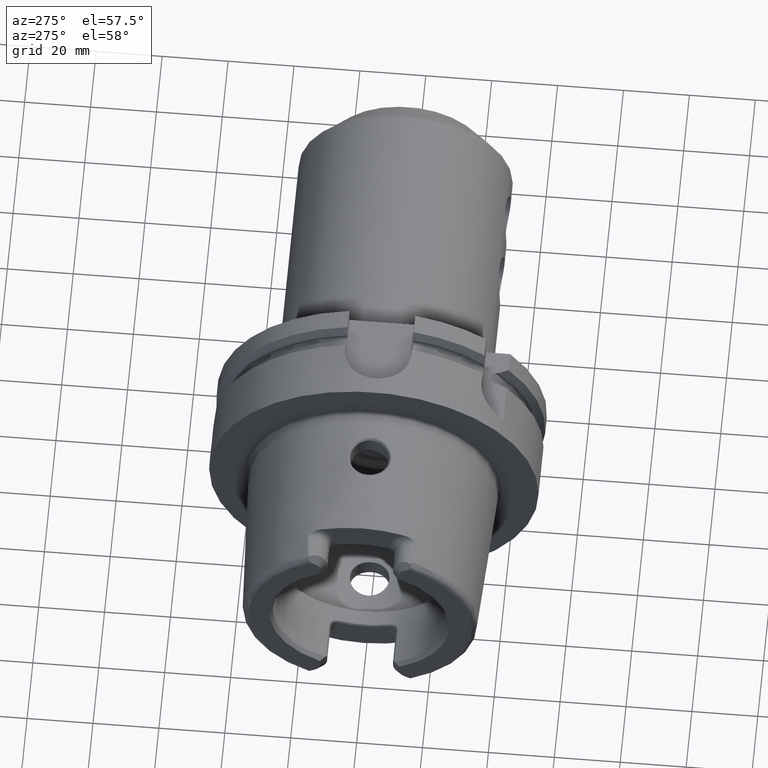
[diagram: clean part render]
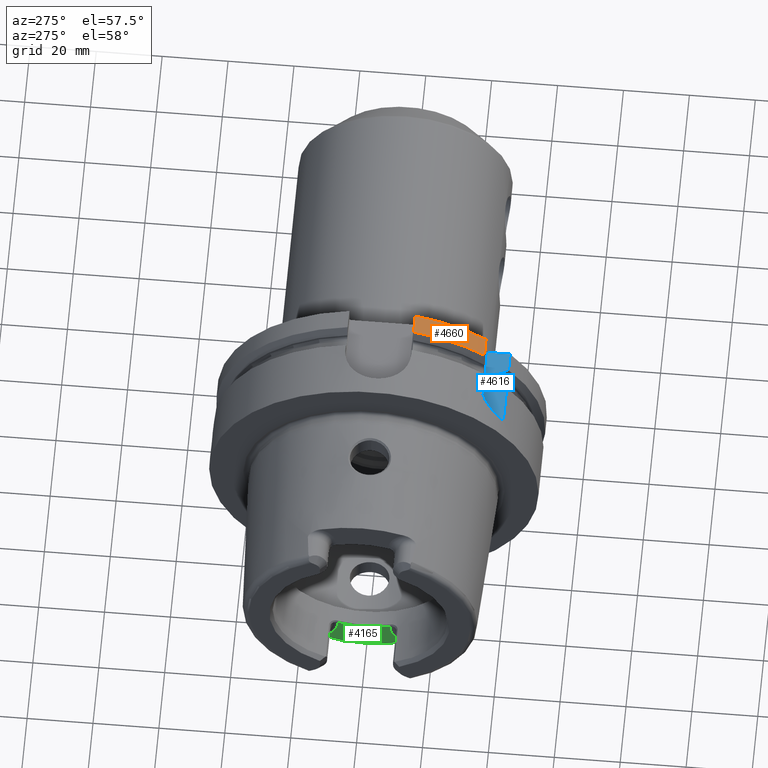
[diagram: same view with three faces highlighted in distinct colors, each labeled with its STEP entity id]
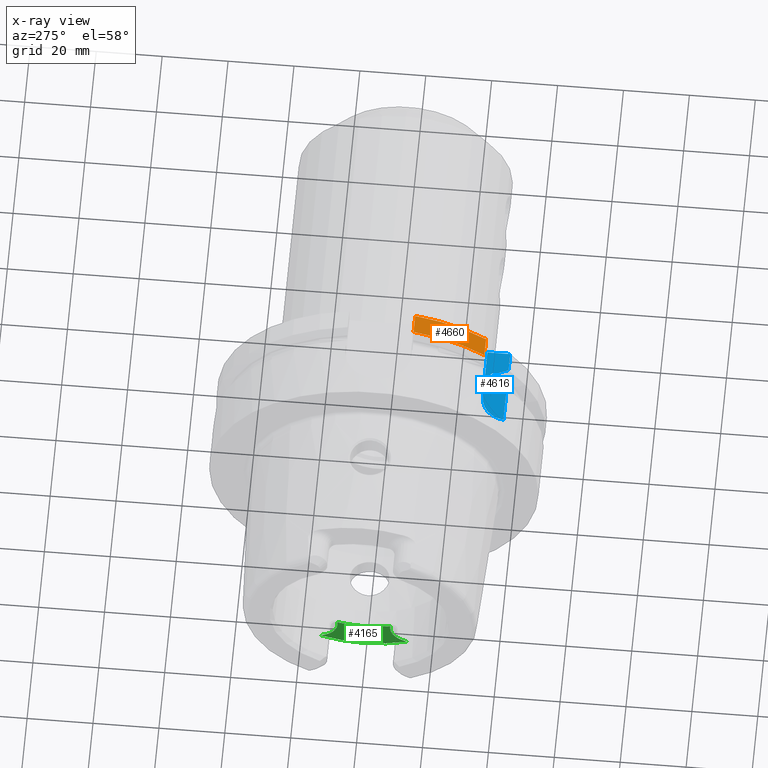
[diagram: x-ray of the same camera — body ghosted, the three highlighted faces saturated]
A machine part, auxiliary view with three faces highlighted in distinct colors.
The next image is the same camera in x-ray (body ghosted, the three faces saturated) — at least one of them is partly hidden behind the body in this view.
Their STEP definitions:

[orange] entity #4660 — the highlighted cylindrical surface (partial cylindrical patch) has radius 50 mm, axis along (1, 0, 0).
#1136=DIRECTION('',(1.E0,0.E0,0.E0));
#1137=VECTOR('',#1136,5.752404735808E0);
#1138=CARTESIAN_POINT('',(2.324759526419E1,-3.15E1,3.882975663071E1));
#1139=LINE('',#1138,#1137);
#1140=DIRECTION('',(1.E0,0.E0,0.E0));
#1141=VECTOR('',#1140,5.752404735808E0);
#1142=CARTESIAN_POINT('',(2.324759526419E1,-1.E1,4.898979485566E1));
#1143=LINE('',#1142,#1141);
#1144=CARTESIAN_POINT('',(2.9E1,0.E0,0.E0));
#1145=DIRECTION('',(1.E0,0.E0,0.E0));
#1146=DIRECTION('',(0.E0,-2.E-1,9.797958971133E-1));
#1147=AXIS2_PLACEMENT_3D('',#1144,#1145,#1146);
#1706=CARTESIAN_POINT('',(2.324759526419E1,-1.E1,4.898979485566E1));
#1713=CARTESIAN_POINT('',(2.324759526419E1,0.E0,0.E0));
#1714=DIRECTION('',(1.E0,0.E0,0.E0));
#1715=DIRECTION('',(0.E0,-2.E-1,9.797958971133E-1));
#1716=AXIS2_PLACEMENT_3D('',#1713,#1714,#1715);
#3304=VERTEX_POINT('',#1706);
#3358=CARTESIAN_POINT('',(2.9E1,-1.E1,4.898979485566E1));
#3359=VERTEX_POINT('',#3358);
#3376=CARTESIAN_POINT('',(2.324759526419E1,-3.15E1,3.882975663071E1));
#3377=CARTESIAN_POINT('',(2.9E1,-3.15E1,3.882975663071E1));
#3378=VERTEX_POINT('',#3376);
#3379=VERTEX_POINT('',#3377);
#4646=CARTESIAN_POINT('',(-5.395E1,0.E0,0.E0));
#4647=DIRECTION('',(1.E0,0.E0,0.E0));
#4648=DIRECTION('',(0.E0,-1.E0,0.E0));
#4649=AXIS2_PLACEMENT_3D('',#4646,#4647,#4648);
#4650=CYLINDRICAL_SURFACE('',#4649,5.E1);
#4652=ORIENTED_EDGE('',*,*,#4651,.F.);
#4654=ORIENTED_EDGE('',*,*,#4653,.F.);
#4656=ORIENTED_EDGE('',*,*,#4655,.T.);
#4657=ORIENTED_EDGE('',*,*,#4554,.T.);
#4658=EDGE_LOOP('',(#4652,#4654,#4656,#4657));
#4659=FACE_OUTER_BOUND('',#4658,.F.);
#4660=ADVANCED_FACE('',(#4659),#4650,.T.);
#1148=CIRCLE('',#1147,5.E1);
#1717=CIRCLE('',#1716,5.E1);
#4554=EDGE_CURVE('',#3359,#3379,#1148,.T.);
#4651=EDGE_CURVE('',#3378,#3379,#1139,.T.);
#4653=EDGE_CURVE('',#3304,#3378,#1717,.T.);
#4655=EDGE_CURVE('',#3304,#3359,#1143,.T.);

[blue] entity #4616 — the highlighted planar face has unit normal (0, 0, 1).
#942=DIRECTION('',(1.E0,2.305590875709E-8,-2.614341417609E-7));
#943=VECTOR('',#942,1.135091581542E1);
#944=CARTESIAN_POINT('',(5.401488920390E0,-3.882975689241E1,3.150000296752E1));
#945=LINE('',#944,#943);
#1045=CARTESIAN_POINT('',(5.401488920390E0,-3.882975689241E1,3.150000296752E1));
#1059=DIRECTION('',(0.E0,1.E0,0.E0));
#1060=VECTOR('',#1059,6.929756630708E0);
#1061=CARTESIAN_POINT('',(2.9E1,-3.882975663071E1,3.15E1));
#1062=LINE('',#1061,#1060);
#1101=DIRECTION('',(1.E0,1.851455699842E-7,-1.851435571355E-7));
#1102=VECTOR('',#1101,1.602812607686E1);
#1103=CARTESIAN_POINT('',(1.297187392314E1,-3.190000296754E1,3.150000296750E1));
#1104=LINE('',#1103,#1102);
#1105=CARTESIAN_POINT('',(1.297187392185E1,-3.95E1,3.15E1));
#1106=DIRECTION('',(0.E0,0.E0,-1.E0));
#1107=DIRECTION('',(-9.961036786085E-1,8.818991701213E-2,0.E0));
#1108=AXIS2_PLACEMENT_3D('',#1105,#1106,#1107);
#1123=DIRECTION('',(1.E0,0.E0,0.E0));
#1124=VECTOR('',#1123,5.752404735808E0);
#1125=CARTESIAN_POINT('',(2.324759526419E1,-3.882975663071E1,3.15E1));
#1126=LINE('',#1125,#1124);
#1312=CARTESIAN_POINT('',(1.8125E1,-3.571640491003E1,3.15E1));
#1313=CARTESIAN_POINT('',(1.798074425159E1,-3.604955434192E1,3.15E1));
#1314=CARTESIAN_POINT('',(1.768677523913E1,-3.672437326077E1,3.15E1));
#1315=CARTESIAN_POINT('',(1.722989798814E1,-3.776083400964E1,3.15E1));
#1316=CARTESIAN_POINT('',(1.691349063877E1,-3.847048452534E1,3.15E1));
#1317=CARTESIAN_POINT('',(1.675240473581E1,-3.882975663071E1,3.15E1));
#1358=DIRECTION('',(0.E0,1.E0,0.E0));
#1359=VECTOR('',#1358,8.344611568473E-1);
#1360=CARTESIAN_POINT('',(1.8125E1,-3.571640491003E1,3.15E1));
#1361=LINE('',#1360,#1359);
#1405=CARTESIAN_POINT('',(1.9125E1,-3.352238058372E1,3.15E1));
#1406=CARTESIAN_POINT('',(1.907497614728E1,-3.352238058372E1,3.15E1));
#1407=CARTESIAN_POINT('',(1.897701784607E1,-3.353249557566E1,3.15E1));
#1408=CARTESIAN_POINT('',(1.883373619528E1,-3.357686808517E1,3.15E1));
#1409=CARTESIAN_POINT('',(1.870193192563E1,-3.364636657565E1,3.15E1));
#1410=CARTESIAN_POINT('',(1.858379344950E1,-3.373566817140E1,3.15E1));
#1411=CARTESIAN_POINT('',(1.847790521215E1,-3.384250269787E1,3.15E1));
#1412=CARTESIAN_POINT('',(1.838099648072E1,-3.396995092392E1,3.15E1));
#1413=CARTESIAN_POINT('',(1.829402378121E1,-3.412035399335E1,3.15E1));
#1414=CARTESIAN_POINT('',(1.822058084936E1,-3.429330627535E1,3.15E1));
#1415=CARTESIAN_POINT('',(1.816533551682E1,-3.448402862690E1,3.15E1));
#1416=CARTESIAN_POINT('',(1.813199463036E1,-3.468480327868E1,3.15E1));
#1417=CARTESIAN_POINT('',(1.8125E1,-3.481613731133E1,3.15E1));
#1418=CARTESIAN_POINT('',(1.8125E1,-3.488194375318E1,3.15E1));
#1484=DIRECTION('',(1.E0,0.E0,0.E0));
#1485=VECTOR('',#1484,1.75E0);
#1486=CARTESIAN_POINT('',(1.9125E1,-3.352238058372E1,3.15E1));
#1487=LINE('',#1486,#1485);
#1546=CARTESIAN_POINT('',(2.1875E1,-3.488194375318E1,3.15E1));
#1547=CARTESIAN_POINT('',(2.1875E1,-3.481623985974E1,3.15E1));
#1548=CARTESIAN_POINT('',(2.186802371144E1,-3.468507935534E1,3.15E1));
#1549=CARTESIAN_POINT('',(2.183478537119E1,-3.448459691562E1,3.15E1));
#1550=CARTESIAN_POINT('',(2.177961035658E1,-3.429381871903E1,3.15E1));
#1551=CARTESIAN_POINT('',(2.170604437623E1,-3.412043323501E1,3.15E1));
#1552=CARTESIAN_POINT('',(2.161869144410E1,-3.396942735539E1,3.15E1));
#1553=CARTESIAN_POINT('',(2.152133244924E1,-3.384158421367E1,3.15E1));
#1554=CARTESIAN_POINT('',(2.141505297065E1,-3.373465665E1,3.15E1));
#1555=CARTESIAN_POINT('',(2.129690043551E1,-3.364560752316E1,3.15E1));
#1556=CARTESIAN_POINT('',(2.116483820292E1,-3.357631746266E1,3.15E1));
#1557=CARTESIAN_POINT('',(2.102273154328E1,-3.353251250912E1,3.15E1));
#1558=CARTESIAN_POINT('',(2.092495432196E1,-3.352238058372E1,3.15E1));
#1559=CARTESIAN_POINT('',(2.0875E1,-3.352238058372E1,3.15E1));
#1630=DIRECTION('',(0.E0,1.E0,0.E0));
#1631=VECTOR('',#1630,8.344611568473E-1);
#1632=CARTESIAN_POINT('',(2.1875E1,-3.571640491003E1,3.15E1));
#1633=LINE('',#1632,#1631);
#1670=CARTESIAN_POINT('',(2.1875E1,-3.571640491003E1,3.15E1));
#1671=CARTESIAN_POINT('',(2.201925574841E1,-3.604955434192E1,3.15E1));
#1672=CARTESIAN_POINT('',(2.231322476087E1,-3.672437326077E1,3.15E1));
#1673=CARTESIAN_POINT('',(2.277010201186E1,-3.776083400964E1,3.15E1));
#1674=CARTESIAN_POINT('',(2.308650936123E1,-3.847048452534E1,3.15E1));
#1675=CARTESIAN_POINT('',(2.324759526419E1,-3.882975663071E1,3.15E1));
#3362=VERTEX_POINT('',#1045);
#3365=CARTESIAN_POINT('',(2.9E1,-3.19E1,3.15E1));
#3367=VERTEX_POINT('',#3365);
#3372=CARTESIAN_POINT('',(2.324759526419E1,-3.882975663071E1,3.15E1));
#3373=CARTESIAN_POINT('',(2.9E1,-3.882975663071E1,3.15E1));
#3374=VERTEX_POINT('',#3372);
#3375=VERTEX_POINT('',#3373);
#3380=CARTESIAN_POINT('',(1.8125E1,-3.571640491003E1,3.15E1));
#3381=CARTESIAN_POINT('',(1.8125E1,-3.488194375318E1,3.15E1));
#3382=VERTEX_POINT('',#3380);
#3383=VERTEX_POINT('',#3381);
#3388=VERTEX_POINT('',#1405);
#3390=CARTESIAN_POINT('',(2.0875E1,-3.352238058372E1,3.15E1));
#3391=VERTEX_POINT('',#3390);
#3394=VERTEX_POINT('',#1546);
#3396=CARTESIAN_POINT('',(2.1875E1,-3.571640491003E1,3.15E1));
#3397=VERTEX_POINT('',#3396);
#3400=VERTEX_POINT('',#1317);
#3401=CARTESIAN_POINT('',(1.297187392314E1,-3.190000296754E1,3.150000296750E1));
#3402=VERTEX_POINT('',#3401);
#4589=CARTESIAN_POINT('',(0.E0,0.E0,3.15E1));
#4590=DIRECTION('',(0.E0,0.E0,1.E0));
#4591=DIRECTION('',(1.E0,0.E0,0.E0));
#4592=AXIS2_PLACEMENT_3D('',#4589,#4590,#4591);
#4593=PLANE('',#4592);
#4594=ORIENTED_EDGE('',*,*,#4536,.T.);
#4595=ORIENTED_EDGE('',*,*,#4549,.F.);
#4597=ORIENTED_EDGE('',*,*,#4596,.F.);
#4599=ORIENTED_EDGE('',*,*,#4598,.F.);
#4601=ORIENTED_EDGE('',*,*,#4600,.T.);
#4603=ORIENTED_EDGE('',*,*,#4602,.T.);
#4605=ORIENTED_EDGE('',*,*,#4604,.F.);
#4607=ORIENTED_EDGE('',*,*,#4606,.T.);
#4609=ORIENTED_EDGE('',*,*,#4608,.F.);
#4611=ORIENTED_EDGE('',*,*,#4610,.T.);
#4612=ORIENTED_EDGE('',*,*,#4472,.F.);
#4613=ORIENTED_EDGE('',*,*,#4524,.T.);
#4614=EDGE_LOOP('',(#4594,#4595,#4597,#4599,#4601,#4603,#4605,#4607,#4609,#4611,
#4612,#4613));
#4615=FACE_OUTER_BOUND('',#4614,.F.);
#4616=ADVANCED_FACE('',(#4615),#4593,.T.);
#1109=CIRCLE('',#1108,7.599982194898E0);
#1318=B_SPLINE_CURVE_WITH_KNOTS('',3,(#1312,#1313,#1314,#1315,#1316,#1317),
.UNSPECIFIED.,.F.,.F.,(4,1,1,4),(0.E0,3.333333333333E-1,6.666666666667E-1,1.E0),
.UNSPECIFIED.);
#1419=B_SPLINE_CURVE_WITH_KNOTS('',3,(#1405,#1406,#1407,#1408,#1409,#1410,#1411,
#1412,#1413,#1414,#1415,#1416,#1417,#1418),.UNSPECIFIED.,.F.,.F.,(4,1,1,1,1,1,1,
1,1,1,1,4),(0.E0,9.090909090909E-2,1.818181818182E-1,2.727272727273E-1,
3.636363636364E-1,4.545454545455E-1,5.454545454545E-1,6.363636363636E-1,
7.272727272727E-1,8.181818181818E-1,9.090909090909E-1,1.E0),.UNSPECIFIED.);
#1560=B_SPLINE_CURVE_WITH_KNOTS('',3,(#1546,#1547,#1548,#1549,#1550,#1551,#1552,
#1553,#1554,#1555,#1556,#1557,#1558,#1559),.UNSPECIFIED.,.F.,.F.,(4,1,1,1,1,1,1,
1,1,1,1,4),(0.E0,9.090909090909E-2,1.818181818182E-1,2.727272727273E-1,
3.636363636364E-1,4.545454545455E-1,5.454545454545E-1,6.363636363636E-1,
7.272727272727E-1,8.181818181818E-1,9.090909090909E-1,1.E0),.UNSPECIFIED.);
#1676=B_SPLINE_CURVE_WITH_KNOTS('',3,(#1670,#1671,#1672,#1673,#1674,#1675),
.UNSPECIFIED.,.F.,.F.,(4,1,1,4),(0.E0,3.333333333333E-1,6.666666666667E-1,1.E0),
.UNSPECIFIED.);
#4472=EDGE_CURVE('',#3362,#3400,#945,.T.);
#4524=EDGE_CURVE('',#3362,#3402,#1109,.T.);
#4536=EDGE_CURVE('',#3402,#3367,#1104,.T.);
#4549=EDGE_CURVE('',#3375,#3367,#1062,.T.);
#4596=EDGE_CURVE('',#3374,#3375,#1126,.T.);
#4598=EDGE_CURVE('',#3397,#3374,#1676,.T.);
#4600=EDGE_CURVE('',#3397,#3394,#1633,.T.);
#4602=EDGE_CURVE('',#3394,#3391,#1560,.T.);
#4604=EDGE_CURVE('',#3388,#3391,#1487,.T.);
#4606=EDGE_CURVE('',#3388,#3383,#1419,.T.);
#4608=EDGE_CURVE('',#3382,#3383,#1361,.T.);
#4610=EDGE_CURVE('',#3382,#3400,#1318,.T.);

[green] entity #4165 — the highlighted planar face has unit normal (-1, 0, 0).
#549=CARTESIAN_POINT('',(-3.5E1,0.E0,0.E0));
#550=DIRECTION('',(1.E0,0.E0,0.E0));
#551=DIRECTION('',(0.E0,-3.659355944317E-1,-9.306401779033E-1));
#552=AXIS2_PLACEMENT_3D('',#549,#550,#551);
#659=CARTESIAN_POINT('',(-3.5E1,1.326662904053E1,-3.373942900971E1));
#700=CARTESIAN_POINT('',(-3.5E1,-8.009999999994E0,-2.576044140549E1));
#701=CARTESIAN_POINT('',(-3.5E1,-7.269616392494E0,-2.599521452766E1));
#702=CARTESIAN_POINT('',(-3.5E1,-5.774680607735E0,-2.639793295020E1));
#703=CARTESIAN_POINT('',(-3.5E1,-3.481759859027E0,-2.680464578135E1));
#704=CARTESIAN_POINT('',(-3.5E1,-1.163574268408E0,-2.700848033442E1));
#705=CARTESIAN_POINT('',(-3.5E1,1.163574229636E0,-2.700848033529E1));
#706=CARTESIAN_POINT('',(-3.5E1,3.481759771636E0,-2.680464579107E1));
#707=CARTESIAN_POINT('',(-3.5E1,5.774680487919E0,-2.639793297771E1));
#708=CARTESIAN_POINT('',(-3.5E1,7.269616343063E0,-2.599521454333E1));
#709=CARTESIAN_POINT('',(-3.5E1,8.009999999993E0,-2.576044140549E1));
#711=DIRECTION('',(0.E0,-5.262912738182E-12,-1.E0));
#712=VECTOR('',#711,1.199558594507E0);
#713=CARTESIAN_POINT('',(-3.5E1,-8.009999999994E0,-2.576044140549E1));
#714=LINE('',#713,#712);
#715=CARTESIAN_POINT('',(-3.5E1,-1.501E1,-2.696E1));
#716=DIRECTION('',(-1.E0,0.E0,0.E0));
#717=DIRECTION('',(0.E0,1.E0,0.E0));
#718=AXIS2_PLACEMENT_3D('',#715,#716,#717);
#720=CARTESIAN_POINT('',(-3.5E1,1.501E1,-2.696E1));
#721=DIRECTION('',(-1.E0,0.E0,0.E0));
#722=DIRECTION('',(0.E0,-2.490529942106E-1,-9.684898585296E-1));
#723=AXIS2_PLACEMENT_3D('',#720,#721,#722);
#725=DIRECTION('',(0.E0,-6.865183864462E-12,1.E0));
#726=VECTOR('',#725,1.199558594503E0);
#727=CARTESIAN_POINT('',(-3.5E1,8.010000000001E0,-2.695999999999E1));
#728=LINE('',#727,#726);
#799=CARTESIAN_POINT('',(-3.5E1,-1.326662904053E1,-3.373942900971E1));
#3161=VERTEX_POINT('',#799);
#3162=VERTEX_POINT('',#659);
#3166=CARTESIAN_POINT('',(-3.5E1,-8.01E0,-2.696E1));
#3168=VERTEX_POINT('',#3166);
#3170=CARTESIAN_POINT('',(-3.5E1,8.01E0,-2.696E1));
#3172=VERTEX_POINT('',#3170);
#3178=VERTEX_POINT('',#700);
#3179=VERTEX_POINT('',#709);
#4150=CARTESIAN_POINT('',(-3.5E1,0.E0,0.E0));
#4151=DIRECTION('',(-1.E0,0.E0,0.E0));
#4152=DIRECTION('',(0.E0,0.E0,1.E0));
#4153=AXIS2_PLACEMENT_3D('',#4150,#4151,#4152);
#4154=PLANE('',#4153);
#4155=ORIENTED_EDGE('',*,*,#4141,.F.);
#4157=ORIENTED_EDGE('',*,*,#4156,.T.);
#4159=ORIENTED_EDGE('',*,*,#4158,.T.);
#4160=ORIENTED_EDGE('',*,*,#3989,.T.);
#4161=ORIENTED_EDGE('',*,*,#4047,.T.);
#4162=ORIENTED_EDGE('',*,*,#4059,.T.);
#4163=EDGE_LOOP('',(#4155,#4157,#4159,#4160,#4161,#4162));
#4164=FACE_OUTER_BOUND('',#4163,.F.);
#4165=ADVANCED_FACE('',(#4164),#4154,.T.);
#553=CIRCLE('',#552,3.6254E1);
#710=B_SPLINE_CURVE_WITH_KNOTS('',3,(#700,#701,#702,#703,#704,#705,#706,#707,
#708,#709),.UNSPECIFIED.,.F.,.F.,(4,1,1,1,1,1,1,4),(0.E0,1.428571428571E-1,
2.857142857143E-1,4.285714285714E-1,5.714285714286E-1,7.142857142857E-1,
8.571428571429E-1,1.E0),.UNSPECIFIED.);
#719=CIRCLE('',#718,7.E0);
#724=CIRCLE('',#723,7.E0);
#3989=EDGE_CURVE('',#3161,#3162,#553,.T.);
#4047=EDGE_CURVE('',#3162,#3172,#724,.T.);
#4059=EDGE_CURVE('',#3172,#3179,#728,.T.);
#4141=EDGE_CURVE('',#3178,#3179,#710,.T.);
#4156=EDGE_CURVE('',#3178,#3168,#714,.T.);
#4158=EDGE_CURVE('',#3168,#3161,#719,.T.);